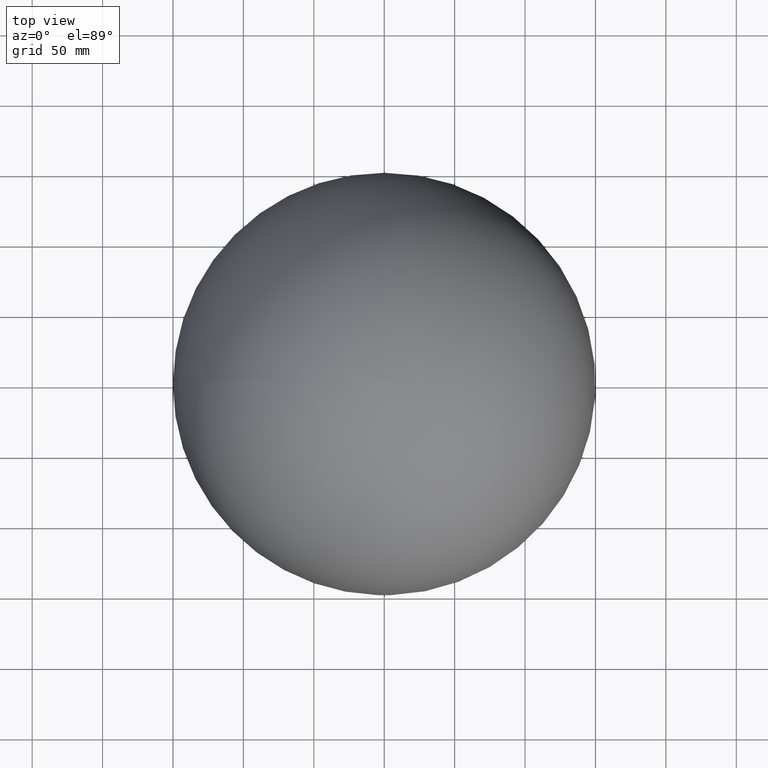
[diagram: clean part render]
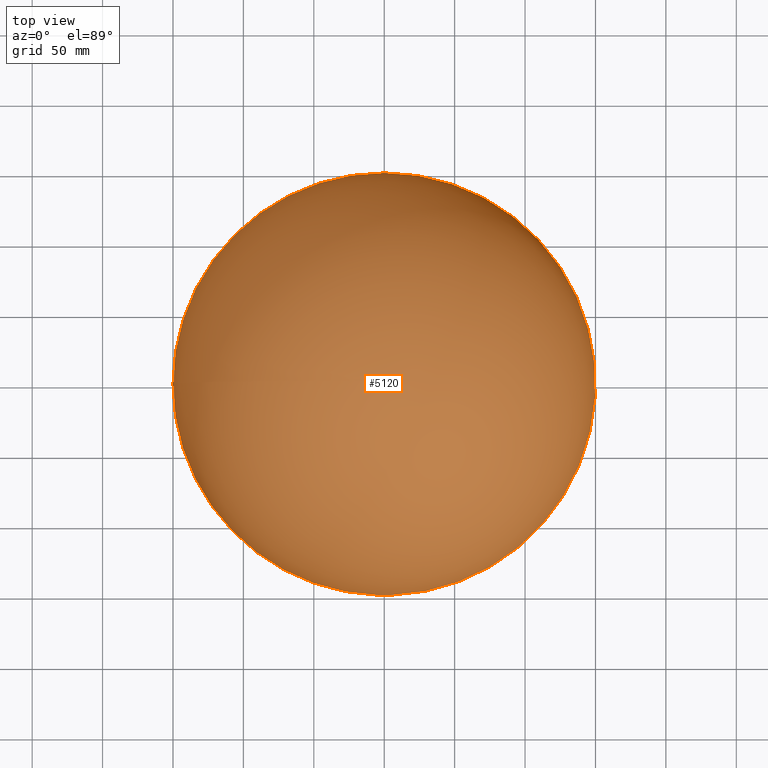
[diagram: same view with one face highlighted and labeled with its STEP entity id]
A machine part, top view. The second image highlights one B-rep face of the part: STEP entity #5120.
In plain terms, the highlighted spherical surface has radius 150 mm.
Its self-contained STEP definition (entity closure, byte-faithful):
#215 = AXIS2_PLACEMENT_3D ( 'NONE', #4534, #11411, #5492 ) ;
#416 = CARTESIAN_POINT ( 'NONE',  ( 5.815780901666275600E-016, -149.9248062085486600, 4.748945496542716200 ) ) ;
#490 = CARTESIAN_POINT ( 'NONE',  ( 0.0000000000000000000, 0.0000000000000000000, 0.0000000000000000000 ) ) ;
#1498 = DIRECTION ( 'NONE',  ( -1.000000000000000000, 0.0000000000000000000, 1.224646799147353200E-016 ) ) ;
#2036 = CARTESIAN_POINT ( 'NONE',  ( -9.184850993605148700E-015, 150.0000000000000000, 0.0000000000000000000 ) ) ;
#2079 = VERTEX_POINT ( 'NONE', #10566 ) ;
#2106 = ORIENTED_EDGE ( 'NONE', *, *, #9988, .F. ) ;
#2172 = EDGE_CURVE ( 'NONE', #10256, #2079, #4888, .T. ) ;
#2621 = AXIS2_PLACEMENT_3D ( 'NONE', #490, #7356, #1498 ) ;
#2653 = EDGE_LOOP ( 'NONE', ( #2106, #6549, #5927, #7209 ) ) ;
#3157 = DIRECTION ( 'NONE',  ( -0.0000000000000000000, -0.0000000000000000000, -1.000000000000000000 ) ) ;
#3902 = CARTESIAN_POINT ( 'NONE',  ( 0.0000000000000000000, -149.9248062085486600, 0.0000000000000000000 ) ) ;
#4178 = CARTESIAN_POINT ( 'NONE',  ( 0.0000000000000000000, 0.0000000000000000000, 0.0000000000000000000 ) ) ;
#4534 = CARTESIAN_POINT ( 'NONE',  ( 0.0000000000000000000, 0.0000000000000000000, 0.0000000000000000000 ) ) ;
#4731 = DIRECTION ( 'NONE',  ( 0.0000000000000000000, 0.0000000000000000000, 1.000000000000000000 ) ) ;
#4835 = DIRECTION ( 'NONE',  ( -0.0000000000000000000, 1.000000000000000000, -0.0000000000000000000 ) ) ;
#4879 = CARTESIAN_POINT ( 'NONE',  ( 0.0000000000000000000, -149.9248062085486600, 0.0000000000000000000 ) ) ;
#4888 = CIRCLE ( 'NONE', #6631, 4.748945496542686900 ) ;
#4912 = DIRECTION ( 'NONE',  ( 0.0000000000000000000, 0.0000000000000000000, 1.000000000000000000 ) ) ;
#5120 = ADVANCED_FACE ( 'NONE', ( #5188 ), #12117, .T. ) ;
#5188 = FACE_OUTER_BOUND ( 'NONE', #2653, .T. ) ;
#5492 = DIRECTION ( 'NONE',  ( 1.000000000000000000, 0.0000000000000000000, 0.0000000000000000000 ) ) ;
#5927 = ORIENTED_EDGE ( 'NONE', *, *, #7012, .T. ) ;
#5978 = VERTEX_POINT ( 'NONE', #2036 ) ;
#6457 = EDGE_CURVE ( 'NONE', #5978, #8069, #9739, .T. ) ;
#6549 = ORIENTED_EDGE ( 'NONE', *, *, #6457, .T. ) ;
#6631 = AXIS2_PLACEMENT_3D ( 'NONE', #4879, #4835, #4731 ) ;
#7012 = EDGE_CURVE ( 'NONE', #8069, #10256, #7884, .T. ) ;
#7209 = ORIENTED_EDGE ( 'NONE', *, *, #2172, .T. ) ;
#7356 = DIRECTION ( 'NONE',  ( -1.224646799147353200E-016, 0.0000000000000000000, -1.000000000000000000 ) ) ;
#7884 = CIRCLE ( 'NONE', #9441, 4.748945496542686900 ) ;
#8069 = VERTEX_POINT ( 'NONE', #8982 ) ;
#8982 = CARTESIAN_POINT ( 'NONE',  ( -4.748945496542278400, -149.9248062085486600, 0.0000000000000000000 ) ) ;
#9441 = AXIS2_PLACEMENT_3D ( 'NONE', #3902, #10801, #4912 ) ;
#9739 = CIRCLE ( 'NONE', #215, 150.0000000000000000 ) ;
#9988 = EDGE_CURVE ( 'NONE', #5978, #2079, #10526, .T. ) ;
#10256 = VERTEX_POINT ( 'NONE', #416 ) ;
#10526 = CIRCLE ( 'NONE', #2621, 150.0000000000000000 ) ;
#10566 = CARTESIAN_POINT ( 'NONE',  ( 4.748945496542278400, -149.9248062085486600, -5.815780901665740200E-016 ) ) ;
#10801 = DIRECTION ( 'NONE',  ( -0.0000000000000000000, 1.000000000000000000, -0.0000000000000000000 ) ) ;
#11411 = DIRECTION ( 'NONE',  ( -0.0000000000000000000, 0.0000000000000000000, 1.000000000000000000 ) ) ;
#11537 = AXIS2_PLACEMENT_3D ( 'NONE', #4178, #3157, #12041 ) ;
#12041 = DIRECTION ( 'NONE',  ( -1.000000000000000000, 0.0000000000000000000, 0.0000000000000000000 ) ) ;
#12117 = SPHERICAL_SURFACE ( 'NONE', #11537, 150.0000000000000000 ) ;